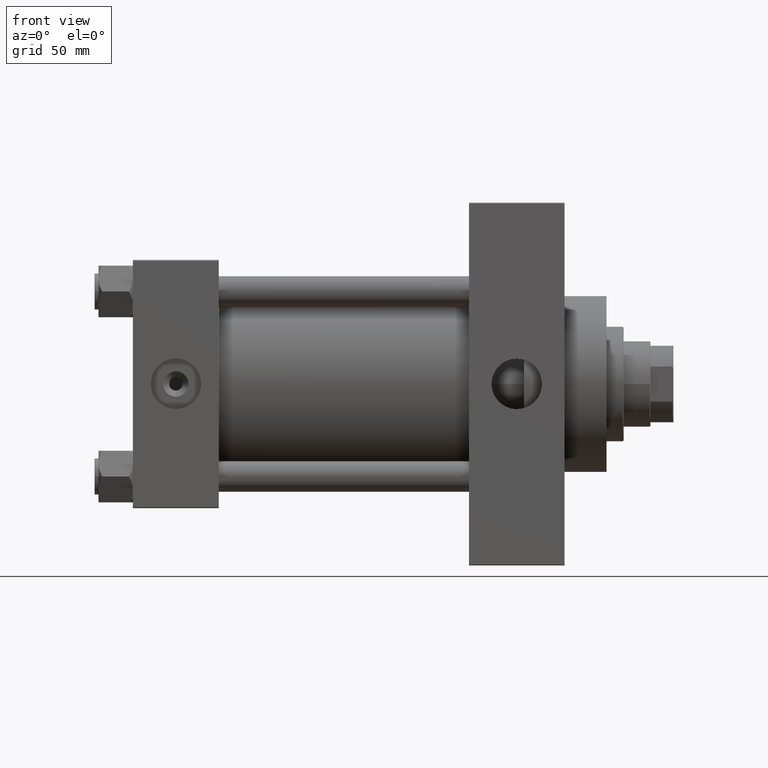
[diagram: clean part render]
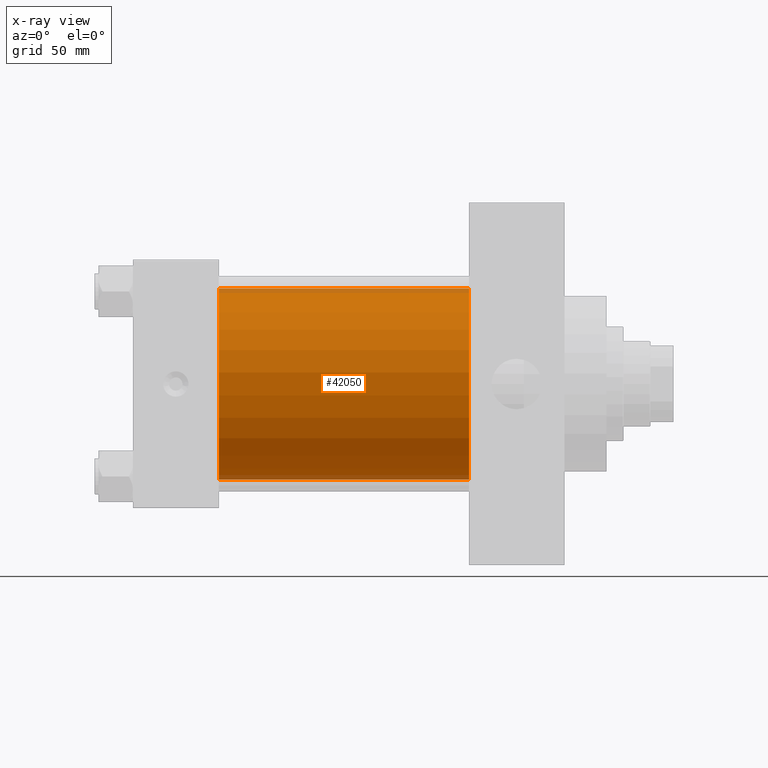
[diagram: x-ray — body ghosted, one internal face saturated and labeled with its STEP entity id]
A machine part, front view, then the same camera in x-ray: the body is ghosted and one INTERNAL B-rep face — a face not visible from any outside direction — is saturated and labeled: STEP entity #42050.
In plain terms, the highlighted cylindrical surface (partial cylindrical patch) has radius 50 mm, axis along (-1, -0, -0).
Its self-contained STEP definition (entity closure, byte-faithful):
#471 = CARTESIAN_POINT ( 'NONE',  ( 45.00000000000000000, 3.521148781771555838E-15, -50.00000000000000000 ) ) ;
#3531 = ORIENTED_EDGE ( 'NONE', *, *, #10340, .F. ) ;
#3687 = AXIS2_PLACEMENT_3D ( 'NONE', #15799, #46662, #19337 ) ;
#9971 = EDGE_LOOP ( 'NONE', ( #15390, #23368, #3531, #28898 ) ) ;
#10143 = VERTEX_POINT ( 'NONE', #21761 ) ;
#10340 = EDGE_CURVE ( 'NONE', #11675, #18565, #20408, .T. ) ;
#10745 = DIRECTION ( 'NONE',  ( 0.000000000000000000, 0.000000000000000000, -1.000000000000000000 ) ) ;
#11675 = VERTEX_POINT ( 'NONE', #41993 ) ;
#12335 = VERTEX_POINT ( 'NONE', #42852 ) ;
#13243 = VECTOR ( 'NONE', #43418, 1000.000000000000000 ) ;
#15068 = CYLINDRICAL_SURFACE ( 'NONE', #3687, 50.00000000000000000 ) ;
#15390 = ORIENTED_EDGE ( 'NONE', *, *, #30819, .T. ) ;
#15551 = FACE_OUTER_BOUND ( 'NONE', #9971, .T. ) ;
#15799 = CARTESIAN_POINT ( 'NONE',  ( 176.0000000000000000, -2.602085213965210642E-15, 0.000000000000000000 ) ) ;
#18565 = VERTEX_POINT ( 'NONE', #471 ) ;
#19337 = DIRECTION ( 'NONE',  ( 0.000000000000000000, 0.000000000000000000, 1.000000000000000000 ) ) ;
#19623 = AXIS2_PLACEMENT_3D ( 'NONE', #32299, #36601, #44695 ) ;
#20408 = CIRCLE ( 'NONE', #19623, 50.00000000000000000 ) ;
#21761 = CARTESIAN_POINT ( 'NONE',  ( 176.0000000000000000, 3.521148781771555838E-15, -50.00000000000000000 ) ) ;
#23368 = ORIENTED_EDGE ( 'NONE', *, *, #39208, .T. ) ;
#24177 = LINE ( 'NONE', #39602, #13243 ) ;
#28898 = ORIENTED_EDGE ( 'NONE', *, *, #35941, .F. ) ;
#30819 = EDGE_CURVE ( 'NONE', #12335, #10143, #35625, .T. ) ;
#32299 = CARTESIAN_POINT ( 'NONE',  ( 45.00000000000000000, -2.602085213965210642E-15, 0.000000000000000000 ) ) ;
#34864 = DIRECTION ( 'NONE',  ( -1.000000000000000000, -0.000000000000000000, -0.000000000000000000 ) ) ;
#35122 = CARTESIAN_POINT ( 'NONE',  ( 176.0000000000000000, 3.521148781771555838E-15, -50.00000000000000000 ) ) ;
#35625 = CIRCLE ( 'NONE', #36496, 50.00000000000000000 ) ;
#35941 = EDGE_CURVE ( 'NONE', #12335, #11675, #24177, .T. ) ;
#36496 = AXIS2_PLACEMENT_3D ( 'NONE', #48204, #36806, #10745 ) ;
#36601 = DIRECTION ( 'NONE',  ( 1.000000000000000000, 0.000000000000000000, 0.000000000000000000 ) ) ;
#36806 = DIRECTION ( 'NONE',  ( 1.000000000000000000, 0.000000000000000000, 0.000000000000000000 ) ) ;
#39208 = EDGE_CURVE ( 'NONE', #10143, #18565, #49820, .T. ) ;
#39602 = CARTESIAN_POINT ( 'NONE',  ( 176.0000000000000000, -2.602085213965210642E-15, 50.00000000000000000 ) ) ;
#41993 = CARTESIAN_POINT ( 'NONE',  ( 45.00000000000000000, -2.602085213965210642E-15, 50.00000000000000000 ) ) ;
#42050 = ADVANCED_FACE ( 'NONE', ( #15551 ), #15068, .F. ) ;
#42852 = CARTESIAN_POINT ( 'NONE',  ( 176.0000000000000000, -2.602085213965210642E-15, 50.00000000000000000 ) ) ;
#43418 = DIRECTION ( 'NONE',  ( -1.000000000000000000, -0.000000000000000000, -0.000000000000000000 ) ) ;
#44695 = DIRECTION ( 'NONE',  ( 0.000000000000000000, 0.000000000000000000, -1.000000000000000000 ) ) ;
#46506 = VECTOR ( 'NONE', #34864, 1000.000000000000000 ) ;
#46662 = DIRECTION ( 'NONE',  ( -1.000000000000000000, -0.000000000000000000, -0.000000000000000000 ) ) ;
#48204 = CARTESIAN_POINT ( 'NONE',  ( 176.0000000000000000, -2.602085213965210642E-15, 0.000000000000000000 ) ) ;
#49820 = LINE ( 'NONE', #35122, #46506 ) ;